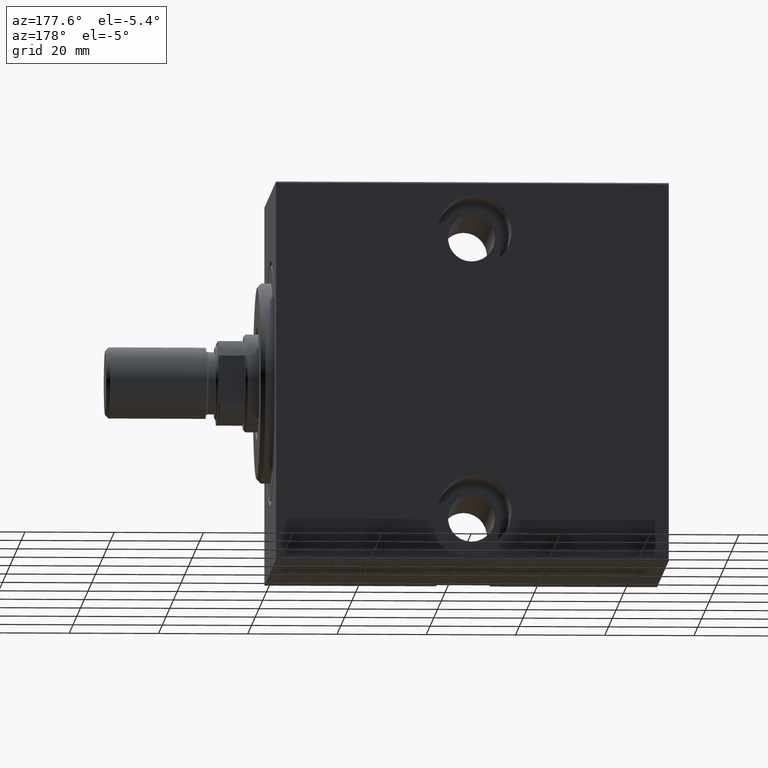
[diagram: clean part render]
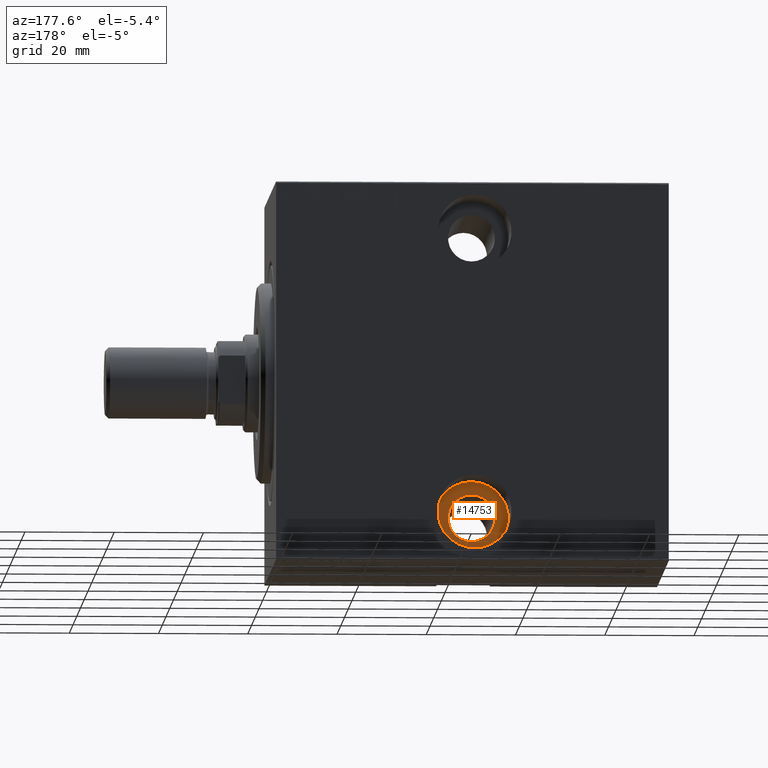
[diagram: same view with one face highlighted and labeled with its STEP entity id]
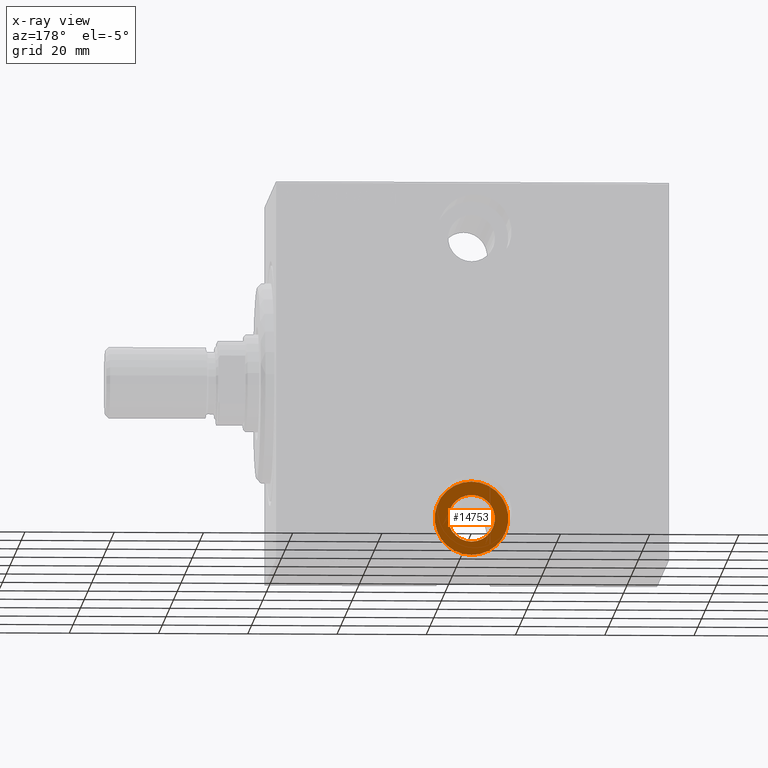
[diagram: x-ray of the same camera — body ghosted, the highlighted face saturated]
A machine part, auxiliary view. The second image highlights one B-rep face of the part: STEP entity #14753.
The next image is the same camera in x-ray: the body ghosted, the highlighted face saturated — about 0% of this face is hidden behind the body in this view.
In plain terms, the highlighted planar face has unit normal (0, 1, 0).
Its self-contained STEP definition (entity closure, byte-faithful):
#1088 = CARTESIAN_POINT ( 'NONE',  ( 44.50000000000002132, -14.49999999999999822, -31.50000000000000000 ) ) ;
#1935 = DIRECTION ( 'NONE',  ( 0.000000000000000000, -1.000000000000000000, 1.963837897332234442E-16 ) ) ;
#2200 = ORIENTED_EDGE ( 'NONE', *, *, #36008, .T. ) ;
#2236 = CIRCLE ( 'NONE', #42546, 5.249999999999997335 ) ;
#4352 = FACE_OUTER_BOUND ( 'NONE', #7332, .T. ) ;
#5110 = AXIS2_PLACEMENT_3D ( 'NONE', #37366, #27366, #33901 ) ;
#6914 = CARTESIAN_POINT ( 'NONE',  ( 44.50000000000002132, -14.50000000000000000, -39.75000000000000711 ) ) ;
#7244 = DIRECTION ( 'NONE',  ( 0.000000000000000000, -1.000000000000000000, 1.963837897332234442E-16 ) ) ;
#7332 = EDGE_LOOP ( 'NONE', ( #2200, #41271 ) ) ;
#7423 = EDGE_LOOP ( 'NONE', ( #10061, #16371 ) ) ;
#7847 = AXIS2_PLACEMENT_3D ( 'NONE', #17245, #7244, #17463 ) ;
#10061 = ORIENTED_EDGE ( 'NONE', *, *, #40758, .T. ) ;
#10135 = EDGE_CURVE ( 'NONE', #41653, #36419, #24543, .T. ) ;
#13912 = CARTESIAN_POINT ( 'NONE',  ( 44.50000000000002132, -14.50000000000000000, -36.75000000000000000 ) ) ;
#14576 = PLANE ( 'NONE',  #17834 ) ;
#14753 = ADVANCED_FACE ( 'NONE', ( #4352, #14788 ), #14576, .T. ) ;
#14788 = FACE_BOUND ( 'NONE', #7423, .T. ) ;
#15317 = CARTESIAN_POINT ( 'NONE',  ( 44.50000000000002132, -14.49999999999999822, -31.50000000000000000 ) ) ;
#16371 = ORIENTED_EDGE ( 'NONE', *, *, #30446, .T. ) ;
#16587 = VERTEX_POINT ( 'NONE', #21301 ) ;
#17245 = CARTESIAN_POINT ( 'NONE',  ( 44.50000000000002132, -14.49999999999999822, -31.50000000000000000 ) ) ;
#17463 = DIRECTION ( 'NONE',  ( 0.000000000000000000, -2.102695122396127944E-16, -1.000000000000000000 ) ) ;
#17834 = AXIS2_PLACEMENT_3D ( 'NONE', #1088, #1935, #28076 ) ;
#21301 = CARTESIAN_POINT ( 'NONE',  ( 44.50000000000002132, -14.49999999999999645, -26.25000000000000355 ) ) ;
#24543 = CIRCLE ( 'NONE', #7847, 8.250000000000007105 ) ;
#25259 = CIRCLE ( 'NONE', #30828, 8.250000000000007105 ) ;
#25265 = DIRECTION ( 'NONE',  ( 0.000000000000000000, -3.304235192336776991E-16, -1.000000000000000000 ) ) ;
#27366 = DIRECTION ( 'NONE',  ( -0.000000000000000000, 1.000000000000000000, -1.963837897332234442E-16 ) ) ;
#27664 = CARTESIAN_POINT ( 'NONE',  ( 44.50000000000002132, -14.49999999999999822, -31.50000000000000000 ) ) ;
#28076 = DIRECTION ( 'NONE',  ( 0.000000000000000000, -1.963837897332234442E-16, -1.000000000000000000 ) ) ;
#29039 = DIRECTION ( 'NONE',  ( 0.000000000000000000, -2.102695122396127944E-16, -1.000000000000000000 ) ) ;
#30446 = EDGE_CURVE ( 'NONE', #40473, #16587, #2236, .T. ) ;
#30828 = AXIS2_PLACEMENT_3D ( 'NONE', #15317, #35139, #29039 ) ;
#33901 = DIRECTION ( 'NONE',  ( 0.000000000000000000, -3.304235192336776991E-16, -1.000000000000000000 ) ) ;
#35139 = DIRECTION ( 'NONE',  ( 0.000000000000000000, -1.000000000000000000, 1.963837897332234442E-16 ) ) ;
#36008 = EDGE_CURVE ( 'NONE', #36419, #41653, #25259, .T. ) ;
#36419 = VERTEX_POINT ( 'NONE', #6914 ) ;
#37366 = CARTESIAN_POINT ( 'NONE',  ( 44.50000000000002132, -14.49999999999999822, -31.50000000000000000 ) ) ;
#37808 = CIRCLE ( 'NONE', #5110, 5.249999999999997335 ) ;
#39705 = CARTESIAN_POINT ( 'NONE',  ( 44.50000000000002132, -14.49999999999999645, -23.24999999999999645 ) ) ;
#40473 = VERTEX_POINT ( 'NONE', #13912 ) ;
#40758 = EDGE_CURVE ( 'NONE', #16587, #40473, #37808, .T. ) ;
#40934 = DIRECTION ( 'NONE',  ( -0.000000000000000000, 1.000000000000000000, -1.963837897332234442E-16 ) ) ;
#41271 = ORIENTED_EDGE ( 'NONE', *, *, #10135, .T. ) ;
#41653 = VERTEX_POINT ( 'NONE', #39705 ) ;
#42546 = AXIS2_PLACEMENT_3D ( 'NONE', #27664, #40934, #25265 ) ;